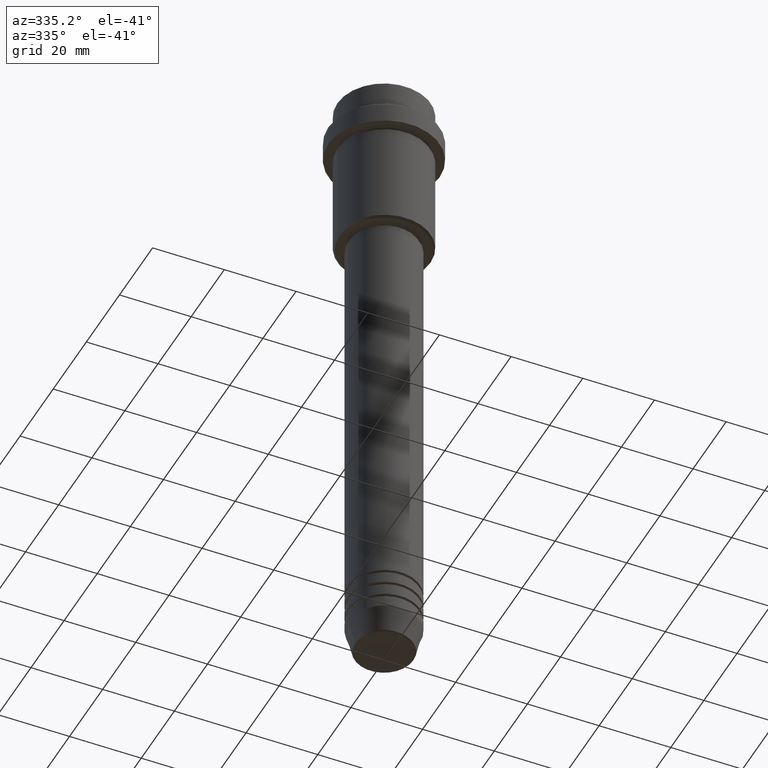
[diagram: clean part render]
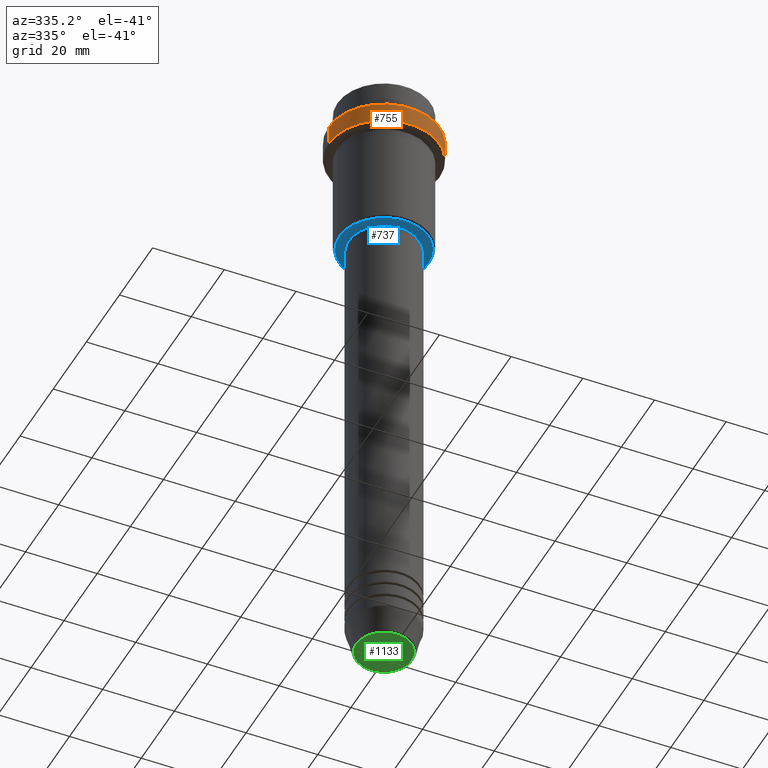
[diagram: same view with three faces highlighted in distinct colors, each labeled with its STEP entity id]
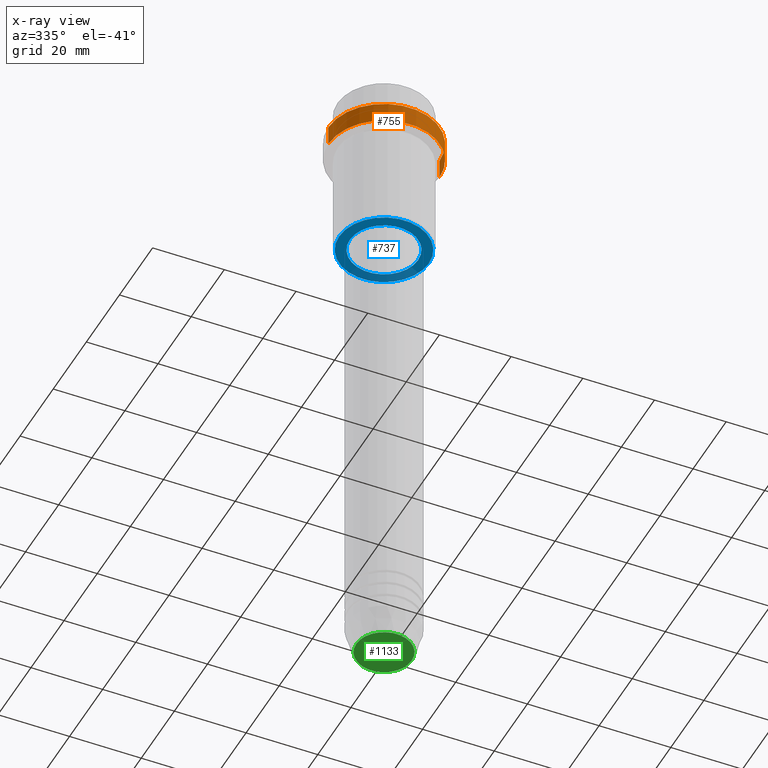
[diagram: x-ray of the same camera — body ghosted, the three highlighted faces saturated]
A machine part, auxiliary view with three faces highlighted in distinct colors.
The next image is the same camera in x-ray (body ghosted, the three faces saturated) — at least one of them is partly hidden behind the body in this view.
Their STEP definitions:

[orange] entity #755 — the highlighted cylindrical surface (partial cylindrical patch) has radius 15.5 mm, axis along (-0, -0, 1).
#23 = DIRECTION ( 'NONE',  ( 1.000000000000000000, 0.000000000000000000, 0.000000000000000000 ) ) ;
#26 = ORIENTED_EDGE ( 'NONE', *, *, #1106, .T. ) ;
#88 = CARTESIAN_POINT ( 'NONE',  ( 15.50000000000000000, 0.000000000000000000, -9.500000000000012434 ) ) ;
#99 = CIRCLE ( 'NONE', #655, 15.50000000000000000 ) ;
#117 = DIRECTION ( 'NONE',  ( -0.000000000000000000, -0.000000000000000000, 1.000000000000000000 ) ) ;
#189 = CARTESIAN_POINT ( 'NONE',  ( 0.000000000000000000, 0.000000000000000000, -9.500000000000012434 ) ) ;
#190 = CARTESIAN_POINT ( 'NONE',  ( 15.50000000000000000, 0.000000000000000000, 0.000000000000000000 ) ) ;
#234 = EDGE_CURVE ( 'NONE', #1175, #794, #1211, .T. ) ;
#298 = VERTEX_POINT ( 'NONE', #337 ) ;
#331 = AXIS2_PLACEMENT_3D ( 'NONE', #1236, #1219, #801 ) ;
#335 = CIRCLE ( 'NONE', #1225, 15.50000000000000000 ) ;
#337 = CARTESIAN_POINT ( 'NONE',  ( 15.50000000000000000, 0.000000000000000000, -15.00000000000000000 ) ) ;
#394 = ORIENTED_EDGE ( 'NONE', *, *, #574, .T. ) ;
#405 = LINE ( 'NONE', #190, #520 ) ;
#520 = VECTOR ( 'NONE', #1148, 1000.000000000000000 ) ;
#530 = DIRECTION ( 'NONE',  ( -0.000000000000000000, -0.000000000000000000, 1.000000000000000000 ) ) ;
#541 = VECTOR ( 'NONE', #530, 1000.000000000000000 ) ;
#574 = EDGE_CURVE ( 'NONE', #298, #665, #405, .T. ) ;
#655 = AXIS2_PLACEMENT_3D ( 'NONE', #189, #747, #978 ) ;
#661 = CARTESIAN_POINT ( 'NONE',  ( -15.50000000000000000, 1.898202538678397557E-15, 0.000000000000000000 ) ) ;
#665 = VERTEX_POINT ( 'NONE', #88 ) ;
#670 = CARTESIAN_POINT ( 'NONE',  ( 0.000000000000000000, 0.000000000000000000, -15.00000000000000000 ) ) ;
#747 = DIRECTION ( 'NONE',  ( 0.000000000000000000, 0.000000000000000000, -1.000000000000000000 ) ) ;
#755 = ADVANCED_FACE ( 'NONE', ( #1328 ), #1321, .T. ) ;
#794 = VERTEX_POINT ( 'NONE', #1103 ) ;
#801 = DIRECTION ( 'NONE',  ( 1.000000000000000000, 0.000000000000000000, 0.000000000000000000 ) ) ;
#899 = ORIENTED_EDGE ( 'NONE', *, *, #234, .F. ) ;
#978 = DIRECTION ( 'NONE',  ( 1.000000000000000000, 0.000000000000000000, 0.000000000000000000 ) ) ;
#1103 = CARTESIAN_POINT ( 'NONE',  ( -15.50000000000000000, 1.898202538678397557E-15, -9.500000000000012434 ) ) ;
#1106 = EDGE_CURVE ( 'NONE', #665, #794, #99, .T. ) ;
#1113 = ORIENTED_EDGE ( 'NONE', *, *, #1220, .T. ) ;
#1128 = CARTESIAN_POINT ( 'NONE',  ( -15.50000000000000000, 1.898202538678397557E-15, -15.00000000000000000 ) ) ;
#1148 = DIRECTION ( 'NONE',  ( -0.000000000000000000, -0.000000000000000000, 1.000000000000000000 ) ) ;
#1175 = VERTEX_POINT ( 'NONE', #1128 ) ;
#1211 = LINE ( 'NONE', #661, #541 ) ;
#1219 = DIRECTION ( 'NONE',  ( -0.000000000000000000, -0.000000000000000000, 1.000000000000000000 ) ) ;
#1220 = EDGE_CURVE ( 'NONE', #1175, #298, #335, .T. ) ;
#1225 = AXIS2_PLACEMENT_3D ( 'NONE', #670, #117, #23 ) ;
#1236 = CARTESIAN_POINT ( 'NONE',  ( 0.000000000000000000, 0.000000000000000000, 0.000000000000000000 ) ) ;
#1245 = EDGE_LOOP ( 'NONE', ( #899, #1113, #394, #26 ) ) ;
#1321 = CYLINDRICAL_SURFACE ( 'NONE', #331, 15.50000000000000000 ) ;
#1328 = FACE_OUTER_BOUND ( 'NONE', #1245, .T. ) ;

[blue] entity #737 — the highlighted planar face has unit normal (0, 0, -1).
#33 = DIRECTION ( 'NONE',  ( 0.000000000000000000, 0.000000000000000000, -1.000000000000000000 ) ) ;
#53 = EDGE_CURVE ( 'NONE', #989, #1346, #1331, .T. ) ;
#68 = DIRECTION ( 'NONE',  ( -0.000000000000000000, -0.000000000000000000, 1.000000000000000000 ) ) ;
#75 = ORIENTED_EDGE ( 'NONE', *, *, #720, .T. ) ;
#197 = AXIS2_PLACEMENT_3D ( 'NONE', #1263, #612, #1053 ) ;
#260 = CARTESIAN_POINT ( 'NONE',  ( 0.000000000000000000, 0.000000000000000000, -45.00000000000000000 ) ) ;
#344 = DIRECTION ( 'NONE',  ( -1.000000000000000000, 0.000000000000000000, 0.000000000000000000 ) ) ;
#349 = CARTESIAN_POINT ( 'NONE',  ( 0.000000000000000000, 0.000000000000000000, -45.00000000000000000 ) ) ;
#356 = AXIS2_PLACEMENT_3D ( 'NONE', #901, #1124, #1230 ) ;
#361 = ORIENTED_EDGE ( 'NONE', *, *, #396, .T. ) ;
#392 = CARTESIAN_POINT ( 'NONE',  ( 12.50000000000001066, 0.000000000000000000, -45.00000000000000000 ) ) ;
#396 = EDGE_CURVE ( 'NONE', #1327, #1303, #1115, .T. ) ;
#398 = AXIS2_PLACEMENT_3D ( 'NONE', #349, #998, #344 ) ;
#460 = CARTESIAN_POINT ( 'NONE',  ( -12.50000000000001066, 1.561424668912876097E-15, -45.00000000000000000 ) ) ;
#466 = DIRECTION ( 'NONE',  ( -1.000000000000000000, 0.000000000000000000, 0.000000000000000000 ) ) ;
#575 = EDGE_LOOP ( 'NONE', ( #361, #75 ) ) ;
#601 = ORIENTED_EDGE ( 'NONE', *, *, #53, .T. ) ;
#612 = DIRECTION ( 'NONE',  ( -0.000000000000000000, -0.000000000000000000, 1.000000000000000000 ) ) ;
#617 = DIRECTION ( 'NONE',  ( 1.000000000000000000, 0.000000000000000000, 0.000000000000000000 ) ) ;
#658 = AXIS2_PLACEMENT_3D ( 'NONE', #260, #33, #466 ) ;
#720 = EDGE_CURVE ( 'NONE', #1303, #1327, #985, .T. ) ;
#737 = ADVANCED_FACE ( 'NONE', ( #791, #1118 ), #896, .T. ) ;
#791 = FACE_OUTER_BOUND ( 'NONE', #575, .T. ) ;
#816 = EDGE_LOOP ( 'NONE', ( #601, #1370 ) ) ;
#842 = CARTESIAN_POINT ( 'NONE',  ( -9.499999999999996447, 1.163414459189985091E-15, -45.00000000000000000 ) ) ;
#896 = PLANE ( 'NONE',  #356 ) ;
#901 = CARTESIAN_POINT ( 'NONE',  ( 0.000000000000000000, 13.00000000000000000, -45.00000000000000000 ) ) ;
#927 = CARTESIAN_POINT ( 'NONE',  ( 9.499999999999996447, 0.000000000000000000, -45.00000000000000000 ) ) ;
#937 = CIRCLE ( 'NONE', #197, 9.499999999999996447 ) ;
#985 = CIRCLE ( 'NONE', #398, 12.50000000000001066 ) ;
#989 = VERTEX_POINT ( 'NONE', #927 ) ;
#998 = DIRECTION ( 'NONE',  ( 0.000000000000000000, 0.000000000000000000, -1.000000000000000000 ) ) ;
#1053 = DIRECTION ( 'NONE',  ( 1.000000000000000000, 0.000000000000000000, 0.000000000000000000 ) ) ;
#1115 = CIRCLE ( 'NONE', #658, 12.50000000000001066 ) ;
#1118 = FACE_BOUND ( 'NONE', #816, .T. ) ;
#1124 = DIRECTION ( 'NONE',  ( 0.000000000000000000, 0.000000000000000000, -1.000000000000000000 ) ) ;
#1204 = AXIS2_PLACEMENT_3D ( 'NONE', #1267, #68, #617 ) ;
#1230 = DIRECTION ( 'NONE',  ( -1.000000000000000000, 0.000000000000000000, -0.000000000000000000 ) ) ;
#1263 = CARTESIAN_POINT ( 'NONE',  ( 0.000000000000000000, 0.000000000000000000, -45.00000000000000000 ) ) ;
#1267 = CARTESIAN_POINT ( 'NONE',  ( 0.000000000000000000, 0.000000000000000000, -45.00000000000000000 ) ) ;
#1303 = VERTEX_POINT ( 'NONE', #460 ) ;
#1327 = VERTEX_POINT ( 'NONE', #392 ) ;
#1331 = CIRCLE ( 'NONE', #1204, 9.499999999999996447 ) ;
#1346 = VERTEX_POINT ( 'NONE', #842 ) ;
#1370 = ORIENTED_EDGE ( 'NONE', *, *, #1378, .T. ) ;
#1378 = EDGE_CURVE ( 'NONE', #1346, #989, #937, .T. ) ;

[green] entity #1133 — the highlighted planar face has unit normal (0, -0, 1).
#195 = AXIS2_PLACEMENT_3D ( 'NONE', #1214, #330, #900 ) ;
#228 = EDGE_LOOP ( 'NONE', ( #281, #339 ) ) ;
#281 = ORIENTED_EDGE ( 'NONE', *, *, #389, .T. ) ;
#330 = DIRECTION ( 'NONE',  ( 0.000000000000000000, 0.000000000000000000, -1.000000000000000000 ) ) ;
#339 = ORIENTED_EDGE ( 'NONE', *, *, #1193, .T. ) ;
#389 = EDGE_CURVE ( 'NONE', #501, #954, #468, .T. ) ;
#422 = DIRECTION ( 'NONE',  ( 1.000000000000000000, 0.000000000000000000, 0.000000000000000000 ) ) ;
#468 = CIRCLE ( 'NONE', #1073, 7.740692158992662719 ) ;
#501 = VERTEX_POINT ( 'NONE', #621 ) ;
#533 = CARTESIAN_POINT ( 'NONE',  ( 0.000000000000000000, 0.000000000000000000, -180.0000000000000000 ) ) ;
#586 = AXIS2_PLACEMENT_3D ( 'NONE', #533, #875, #422 ) ;
#621 = CARTESIAN_POINT ( 'NONE',  ( 7.740692158992662719, 0.000000000000000000, -180.0000000000000000 ) ) ;
#642 = PLANE ( 'NONE',  #586 ) ;
#814 = DIRECTION ( 'NONE',  ( 1.000000000000000000, 0.000000000000000000, 0.000000000000000000 ) ) ;
#875 = DIRECTION ( 'NONE',  ( 0.000000000000000000, -0.000000000000000000, 1.000000000000000000 ) ) ;
#900 = DIRECTION ( 'NONE',  ( 1.000000000000000000, 0.000000000000000000, 0.000000000000000000 ) ) ;
#954 = VERTEX_POINT ( 'NONE', #1251 ) ;
#963 = CIRCLE ( 'NONE', #195, 7.740692158992662719 ) ;
#1021 = CARTESIAN_POINT ( 'NONE',  ( 0.000000000000000000, 0.000000000000000000, -180.0000000000000000 ) ) ;
#1073 = AXIS2_PLACEMENT_3D ( 'NONE', #1021, #1344, #814 ) ;
#1133 = ADVANCED_FACE ( 'NONE', ( #1187 ), #642, .F. ) ;
#1187 = FACE_OUTER_BOUND ( 'NONE', #228, .T. ) ;
#1193 = EDGE_CURVE ( 'NONE', #954, #501, #963, .T. ) ;
#1214 = CARTESIAN_POINT ( 'NONE',  ( 0.000000000000000000, 0.000000000000000000, -180.0000000000000000 ) ) ;
#1251 = CARTESIAN_POINT ( 'NONE',  ( -7.740692158992662719, 9.775343368540047024E-16, -180.0000000000000000 ) ) ;
#1344 = DIRECTION ( 'NONE',  ( 0.000000000000000000, 0.000000000000000000, -1.000000000000000000 ) ) ;